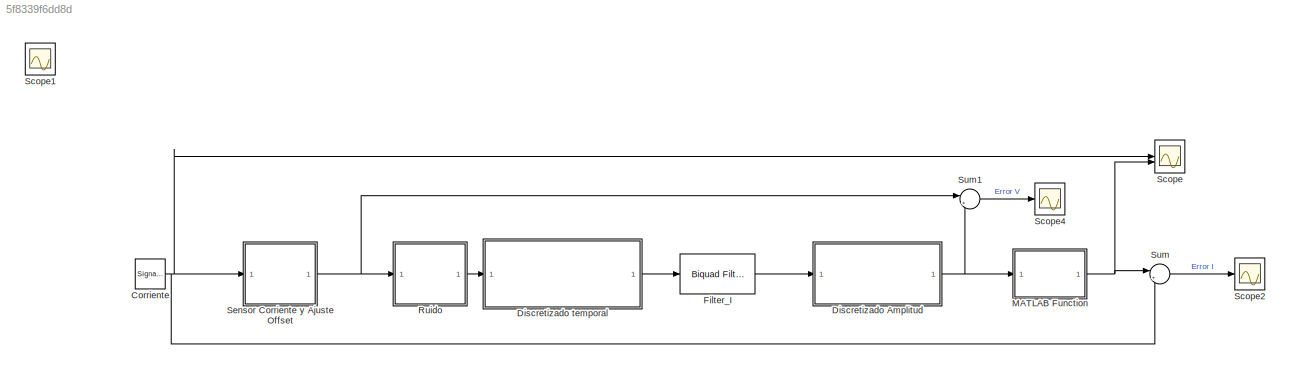
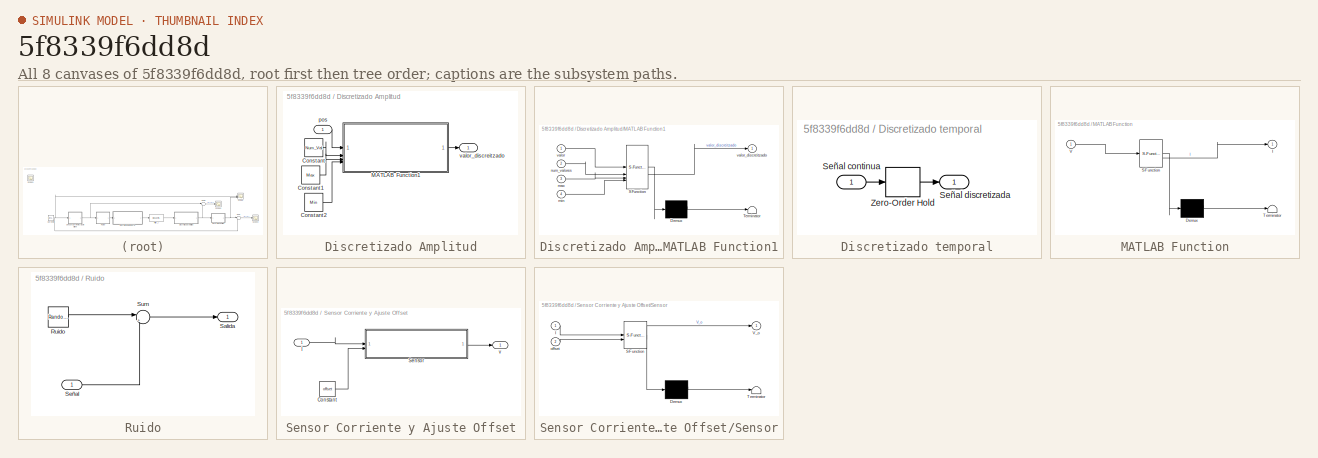
[diagram: thumbnail index - all 8 canvases of the model, root first then tree order]
MODEL slx_5f8339f6dd8d
KIND model
CONFIG AbsTol = auto
CONFIG EnableMultiTasking = off
CONFIG FixedStep = auto
CONFIG MaxStep = auto
CONFIG MinStep = auto
CONFIG RelTol = 1e-3
CONFIG SampleTimeConstraint = Unconstrained
CONFIG SolverName = VariableStepAuto
CONFIG StartTime = 0.0
CONFIG StopTime = 6
BLOCK [SignalGenerator] Corriente
  Amplitude = 300
BLOCK [SubSystem] Discretizado Amplitud
BLOCK [Constant] Discretizado Amplitud/Constant
  Value = Num_Val
BLOCK [Constant] Discretizado Amplitud/Constant1
  Value = Max
BLOCK [Constant] Discretizado Amplitud/Constant2
  Value = Min
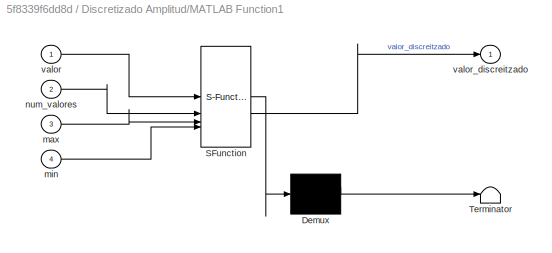
BLOCK [SubSystem] Discretizado Amplitud/MATLAB Function1
  ErrorFcn = Stateflow.Translate.translate
  LibrarySourceBlock = simulink/User-Defined\nFunctions/MATLAB Function
  PermitHierarchicalResolution = ExplicitOnly
  SFBlockType = MATLAB Function
  TreatAsAtomicUnit = on
BLOCK [Demux] Discretizado Amplitud/MATLAB Function1/ Demux 
  Outputs = 1
BLOCK [S-Function] Discretizado Amplitud/MATLAB Function1/ SFunction 
  EnableBusSupport = on
  FunctionName = sf_sfun
  PortCounts = [4 2]
  SFcnIsStateOwnerBlock = off
  SFunctionDeploymentMode = off
  Tag = Stateflow S-Function 1
BLOCK [Terminator] Discretizado Amplitud/MATLAB Function1/ Terminator 
BLOCK [Inport] Discretizado Amplitud/MATLAB Function1/max
  Port = 3
BLOCK [Inport] Discretizado Amplitud/MATLAB Function1/min
  Port = 4
BLOCK [Inport] Discretizado Amplitud/MATLAB Function1/num_valores
  Port = 2
BLOCK [Inport] Discretizado Amplitud/MATLAB Function1/valor
BLOCK [Outport] Discretizado Amplitud/MATLAB Function1/valor_discreitzado
BLOCK [Inport] Discretizado Amplitud/pos
BLOCK [Outport] Discretizado Amplitud/valor_discreitzado
BLOCK [SubSystem] Discretizado temporal
BLOCK [Inport] Discretizado temporal/Señal continua
BLOCK [Outport] Discretizado temporal/Señal discretizada
BLOCK [ZeroOrderHold] Discretizado temporal/Zero-Order Hold
  SampleTime = Tiempo_Discretizado
BLOCK [Reference] Filter_I  REF=dsparch4/Biquad Filter
  SourceBlock = dsparch4/Biquad Filter
  SourceType = Biquad Filter
  Tag = BlockMethodSubSystem
  UserDataPersistent = on
BLOCK [SubSystem] MATLAB Function
  ErrorFcn = Stateflow.Translate.translate
  LibrarySourceBlock = simulink/User-Defined\nFunctions/MATLAB Function
  PermitHierarchicalResolution = ExplicitOnly
  SFBlockType = MATLAB Function
  TreatAsAtomicUnit = on
BLOCK [Demux] MATLAB Function/ Demux 
  Outputs = 1
BLOCK [S-Function] MATLAB Function/ SFunction 
  EnableBusSupport = on
  FunctionName = sf_sfun
  PortCounts = [1 2]
  SFcnIsStateOwnerBlock = off
  SFunctionDeploymentMode = off
  Tag = Stateflow S-Function 3
BLOCK [Terminator] MATLAB Function/ Terminator 
BLOCK [Outport] MATLAB Function/I
BLOCK [Inport] MATLAB Function/V
BLOCK [SubSystem] Ruido
BLOCK [RandomNumber] Ruido/Ruido
  Mean = M
  SampleTime = T
  Seed = 10
  Variance = V
BLOCK [Outport] Ruido/Salida
BLOCK [Inport] Ruido/Señal
BLOCK [Sum] Ruido/Sum
  Inputs = |++
BLOCK [Scope] Scope
  Floating = off
  NumInputPorts = 2
  ScopeSpecificationString = Simulink.scopes.TimeScopeBlockCfg('CurrentConfiguration', extmgr.ConfigurationSet(extmgr.Configuration('Core','General UI',true),extmgr.Configuration('Core','Source UI',true),extmgr.Configuration('Sources','WiredSimulink',true,'DataLoggingVariableName','ScopeData1'),extmgr.Configuration('Visuals','Time Domain',true,'SerializedDisplays',{struct('MinYLimReal','-375.00000','MaxYLimReal','375.00000','...<+1468ch>
BLOCK [Scope] Scope1
  Floating = off
  IOType = viewer
  NumInputPorts = 1
  ScopeSpecificationString = Simulink.scopes.TimeScopeBlockCfg('CurrentConfiguration', extmgr.ConfigurationSet(extmgr.Configuration('Core','General UI',true),extmgr.Configuration('Core','Source UI',true),extmgr.Configuration('Sources','WiredSimulink',true,'DataLoggingVariableName','ScopeData1'),extmgr.Configuration('Visuals','Time Domain',true,'SerializedDisplays',{struct('MinYLimReal','-4.32638','MaxYLimReal','7.25581','YLab...<+1386ch>
BLOCK [Scope] Scope2
  Floating = off
  NumInputPorts = 1
  ScopeSpecificationString = Simulink.scopes.TimeScopeBlockCfg('CurrentConfiguration', extmgr.ConfigurationSet(extmgr.Configuration('Core','General UI',true),extmgr.Configuration('Core','Source UI',true),extmgr.Configuration('Sources','WiredSimulink',true,'DataLoggingVariableName','ScopeData2'),extmgr.Configuration('Visuals','Time Domain',true,'SerializedDisplays',{struct('MinYLimReal','-338.78367','MaxYLimReal','41.51324','Y...<+1452ch>
BLOCK [Scope] Scope4
  Floating = off
  NumInputPorts = 1
  ScopeSpecificationString = Simulink.scopes.TimeScopeBlockCfg('CurrentConfiguration', extmgr.ConfigurationSet(extmgr.Configuration('Core','General UI',true),extmgr.Configuration('Core','Source UI',true),extmgr.Configuration('Sources','WiredSimulink',true,'DataLoggingVariableName','ScopeData4'),extmgr.Configuration('Visuals','Time Domain',true,'SerializedDisplays',{struct('MinYLimReal','-0.3427','MaxYLimReal','1.71084','YLabe...<+1436ch>
BLOCK [SubSystem] Sensor Corriente y Ajuste Offset
BLOCK [Constant] Sensor Corriente y Ajuste Offset/Constant
  Value = offset
BLOCK [Inport] Sensor Corriente y Ajuste Offset/I
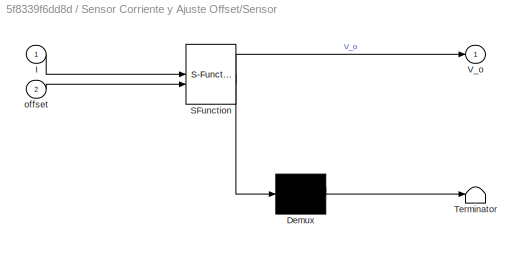
BLOCK [SubSystem] Sensor Corriente y Ajuste Offset/Sensor
  ErrorFcn = Stateflow.Translate.translate
  LibrarySourceBlock = simulink/User-Defined\nFunctions/MATLAB Function
  PermitHierarchicalResolution = ExplicitOnly
  SFBlockType = MATLAB Function
  TreatAsAtomicUnit = on
BLOCK [Demux] Sensor Corriente y Ajuste Offset/Sensor/ Demux 
  Outputs = 1
BLOCK [S-Function] Sensor Corriente y Ajuste Offset/Sensor/ SFunction 
  EnableBusSupport = on
  FunctionName = sf_sfun
  PortCounts = [2 2]
  SFcnIsStateOwnerBlock = off
  SFunctionDeploymentMode = off
  Tag = Stateflow S-Function 2
BLOCK [Terminator] Sensor Corriente y Ajuste Offset/Sensor/ Terminator 
BLOCK [Inport] Sensor Corriente y Ajuste Offset/Sensor/I
BLOCK [Outport] Sensor Corriente y Ajuste Offset/Sensor/V_o
BLOCK [Inport] Sensor Corriente y Ajuste Offset/Sensor/offset
  Port = 2
BLOCK [Outport] Sensor Corriente y Ajuste Offset/v
BLOCK [Sum] Sum
  Inputs = |+-
BLOCK [Sum] Sum1
  Inputs = |+-
NET Corriente:1 -> Scope:1, Sensor Corriente y Ajuste Offset:1, Sum:2
LINE Discretizado Amplitud/Constant1:1 -> Discretizado Amplitud/MATLAB Function1:3
LINE Discretizado Amplitud/Constant2:1 -> Discretizado Amplitud/MATLAB Function1:4
LINE Discretizado Amplitud/Constant:1 -> Discretizado Amplitud/MATLAB Function1:2
LINE Discretizado Amplitud/MATLAB Function1:1 -> Discretizado Amplitud/valor_discreitzado:1
LINE Discretizado Amplitud/pos:1 -> Discretizado Amplitud/MATLAB Function1:1
NET Discretizado Amplitud:1 -> MATLAB Function:1, Sum1:2
LINE Discretizado temporal/Señal continua:1 -> Discretizado temporal/Zero-Order Hold:1
LINE Discretizado temporal/Zero-Order Hold:1 -> Discretizado temporal/Señal discretizada:1
LINE Discretizado temporal:1 -> Filter_I:1
LINE Filter_I:1 -> Discretizado Amplitud:1
NET MATLAB Function:1 -> Scope:2, Sum:1
LINE Ruido/Ruido:1 -> Ruido/Sum:1
LINE Ruido/Señal:1 -> Ruido/Sum:2
LINE Ruido/Sum:1 -> Ruido/Salida:1
LINE Ruido:1 -> Discretizado temporal:1
LINE Sensor Corriente y Ajuste Offset/Constant:1 -> Sensor Corriente y Ajuste Offset/Sensor:2
LINE Sensor Corriente y Ajuste Offset/I:1 -> Sensor Corriente y Ajuste Offset/Sensor:1
LINE Sensor Corriente y Ajuste Offset/Sensor:1 -> Sensor Corriente y Ajuste Offset/v:1
NET Sensor Corriente y Ajuste Offset:1 -> Ruido:1, Sum1:1
LINE Sum1:1 -> Scope4:1
LINE Sum:1 -> Scope2:1
note: NET lines group one-source signal fan-out (src -> all destinations, sorted); 1:1 wires keep LINE
CHART Discretizado Amplitud/MATLAB Function1 states=1 transitions=1
  STATE_LABEL 'eML_blk_kernel()'
  STATE_LABEL 'SCRIPT:\nfunction valor_discreitzado  = fcn(valor,num_valores,max,min)\n\nif(valor>max)\n    valor_discreitzado=max;\n    return\nend\nif(valor<min)\n    valor_discreitzado=min;\n    return\nend\n\n\nvalor_escalon=(max-min)/(num_valores-1);\n\n\ni=min;\n while(i<max)\n    if(i+valor_escalon/2>valor)\n        valor_discreitzado=i;\n        return\n    end\n    i=i+valor_escalon;\nend\n\n\n\n      valor_discreitzado=max;\nend\n'
CHART Sensor Corriente y Ajuste Offset/Sensor states=1 transitions=1
  STATE_LABEL 'eML_blk_kernel()'
  STATE_LABEL 'SCRIPT:\nfunction V_o = Sensor_L01Z300S05(I,offset)\nVcc=5;\nif(I>300)\n    I=300;\nend\nif(I<-300)\n    I=-300;\nend\nV_ref=Vcc/2;\nV_o=V_ref+0.005*I;\n\nV_o=V_o+offset;\n\nend'
CHART MATLAB Function states=1 transitions=1
  STATE_LABEL 'eML_blk_kernel()'
  STATE_LABEL 'SCRIPT:\nfunction I = fcn(V)\n\nI=(V-2.5)/0.005;\n'
CHART  states=0 transitions=0
CHART  states=0 transitions=0
CHART  states=0 transitions=0
